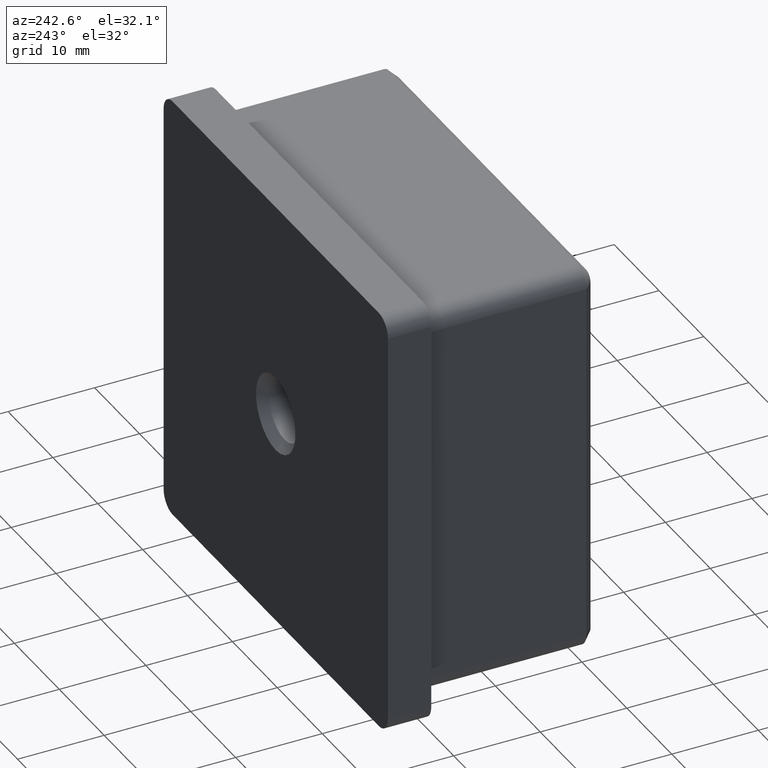
[diagram: clean part render]
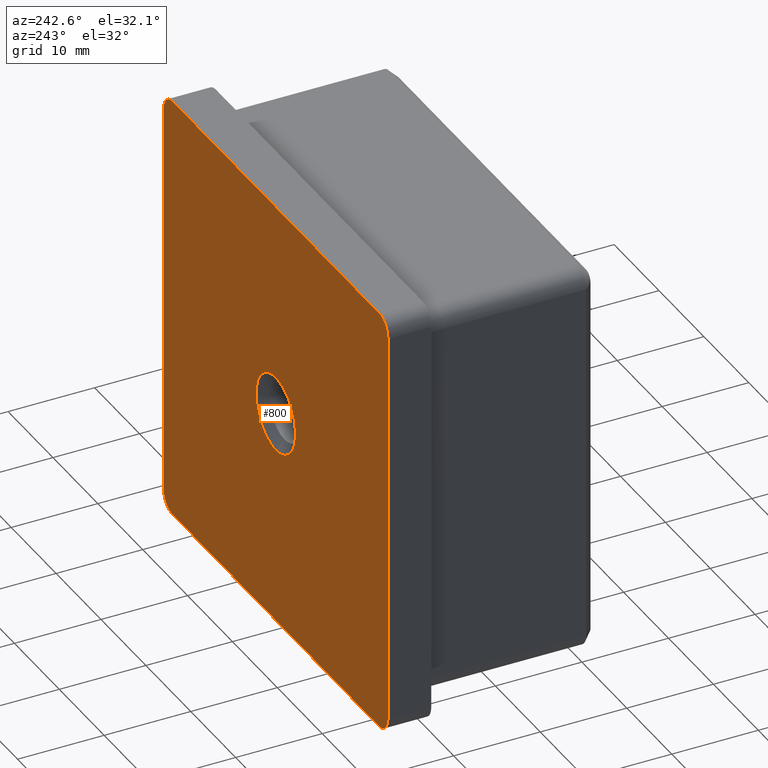
[diagram: same view with one face highlighted and labeled with its STEP entity id]
A machine part, auxiliary view. The second image highlights one B-rep face of the part: STEP entity #800.
In plain terms, the highlighted planar face has unit normal (0, 1, 0).
Its self-contained STEP definition (entity closure, byte-faithful):
#255 = DIRECTION ( 'NONE',  ( 0.0000000000000000000, 1.000000000000000000, 0.0000000000000000000 ) ) ;
#508 = EDGE_LOOP ( 'NONE', ( #3641, #13262, #15725, #5010, #15180, #10152, #16857, #9380 ) ) ;
#524 = LINE ( 'NONE', #5050, #7430 ) ;
#800 = ADVANCED_FACE ( 'NONE', ( #1093, #11673 ), #3887, .T. ) ;
#891 = VERTEX_POINT ( 'NONE', #16561 ) ;
#1093 = FACE_BOUND ( 'NONE', #3625, .T. ) ;
#1098 = EDGE_CURVE ( 'NONE', #13890, #2833, #2174, .T. ) ;
#1150 = DIRECTION ( 'NONE',  ( -0.0000000000000000000, -1.000000000000000000, -0.0000000000000000000 ) ) ;
#1577 = DIRECTION ( 'NONE',  ( 0.0000000000000000000, 1.000000000000000000, 0.0000000000000000000 ) ) ;
#1687 = VERTEX_POINT ( 'NONE', #16149 ) ;
#1812 = EDGE_CURVE ( 'NONE', #3569, #1687, #5575, .T. ) ;
#2174 = CIRCLE ( 'NONE', #5744, 2.000000000000001800 ) ;
#2728 = CARTESIAN_POINT ( 'NONE',  ( 7.837739514543038200E-016, 5.000000000000000000, -4.399999999999979000 ) ) ;
#2833 = VERTEX_POINT ( 'NONE', #6756 ) ;
#2918 = CARTESIAN_POINT ( 'NONE',  ( -23.00000000000000700, 5.000000000000000000, -23.00000000000000000 ) ) ;
#2933 = DIRECTION ( 'NONE',  ( 0.0000000000000000000, 1.000000000000000000, 0.0000000000000000000 ) ) ;
#3545 = DIRECTION ( 'NONE',  ( -0.0000000000000000000, -0.0000000000000000000, -1.000000000000000000 ) ) ;
#3569 = VERTEX_POINT ( 'NONE', #4045 ) ;
#3625 = EDGE_LOOP ( 'NONE', ( #16063, #9490 ) ) ;
#3641 = ORIENTED_EDGE ( 'NONE', *, *, #12205, .T. ) ;
#3667 = DIRECTION ( 'NONE',  ( 0.0000000000000000000, 0.0000000000000000000, 1.000000000000000000 ) ) ;
#3756 = VECTOR ( 'NONE', #3545, 1000.000000000000000 ) ;
#3887 = PLANE ( 'NONE',  #16170 ) ;
#4045 = CARTESIAN_POINT ( 'NONE',  ( -24.99999999999998900, 5.000000000000000000, 22.99999999999998600 ) ) ;
#4773 = EDGE_CURVE ( 'NONE', #5229, #5257, #11298, .T. ) ;
#4786 = EDGE_CURVE ( 'NONE', #1687, #13890, #12388, .T. ) ;
#5010 = ORIENTED_EDGE ( 'NONE', *, *, #12837, .T. ) ;
#5050 = CARTESIAN_POINT ( 'NONE',  ( -25.00000000000000400, 5.000000000000000000, -25.00000000000000000 ) ) ;
#5229 = VERTEX_POINT ( 'NONE', #8347 ) ;
#5257 = VERTEX_POINT ( 'NONE', #2728 ) ;
#5523 = AXIS2_PLACEMENT_3D ( 'NONE', #14088, #2933, #5740 ) ;
#5575 = CIRCLE ( 'NONE', #5523, 2.000000000000001800 ) ;
#5660 = DIRECTION ( 'NONE',  ( 0.0000000000000000000, 0.0000000000000000000, 1.000000000000000000 ) ) ;
#5740 = DIRECTION ( 'NONE',  ( 0.0000000000000000000, 0.0000000000000000000, 1.000000000000000000 ) ) ;
#5744 = AXIS2_PLACEMENT_3D ( 'NONE', #15512, #1577, #11413 ) ;
#6152 = DIRECTION ( 'NONE',  ( 0.0000000000000000000, 0.0000000000000000000, 1.000000000000000000 ) ) ;
#6570 = CIRCLE ( 'NONE', #9542, 4.399999999999979000 ) ;
#6688 = VECTOR ( 'NONE', #13915, 1000.000000000000000 ) ;
#6756 = CARTESIAN_POINT ( 'NONE',  ( 24.99999999999999600, 5.000000000000000000, 22.99999999999998600 ) ) ;
#7252 = CARTESIAN_POINT ( 'NONE',  ( -23.00000000000000700, 5.000000000000000000, -25.00000000000000000 ) ) ;
#7358 = CIRCLE ( 'NONE', #12325, 2.000000000000001800 ) ;
#7430 = VECTOR ( 'NONE', #14659, 1000.000000000000000 ) ;
#7559 = VERTEX_POINT ( 'NONE', #7755 ) ;
#7755 = CARTESIAN_POINT ( 'NONE',  ( -25.00000000000000400, 5.000000000000000000, -23.00000000000000000 ) ) ;
#7767 = CARTESIAN_POINT ( 'NONE',  ( 24.99999999999999600, 5.000000000000000000, -25.00000000000000000 ) ) ;
#7880 = LINE ( 'NONE', #7767, #3756 ) ;
#7883 = EDGE_CURVE ( 'NONE', #7559, #3569, #524, .T. ) ;
#7977 = CARTESIAN_POINT ( 'NONE',  ( 22.99999999999999600, 5.000000000000000000, 24.99999999999998600 ) ) ;
#8031 = DIRECTION ( 'NONE',  ( 0.0000000000000000000, 0.0000000000000000000, 1.000000000000000000 ) ) ;
#8209 = DIRECTION ( 'NONE',  ( 1.000000000000000000, 0.0000000000000000000, 0.0000000000000000000 ) ) ;
#8347 = CARTESIAN_POINT ( 'NONE',  ( 2.449293598294707400E-016, 5.000000000000000000, 4.399999999999979000 ) ) ;
#9380 = ORIENTED_EDGE ( 'NONE', *, *, #1098, .T. ) ;
#9471 = DIRECTION ( 'NONE',  ( 0.0000000000000000000, 1.000000000000000000, 0.0000000000000000000 ) ) ;
#9490 = ORIENTED_EDGE ( 'NONE', *, *, #9577, .T. ) ;
#9542 = AXIS2_PLACEMENT_3D ( 'NONE', #11779, #12924, #6152 ) ;
#9577 = EDGE_CURVE ( 'NONE', #5257, #5229, #6570, .T. ) ;
#10152 = ORIENTED_EDGE ( 'NONE', *, *, #1812, .T. ) ;
#11155 = CIRCLE ( 'NONE', #14962, 2.000000000000001800 ) ;
#11298 = CIRCLE ( 'NONE', #12854, 4.399999999999979000 ) ;
#11413 = DIRECTION ( 'NONE',  ( 0.0000000000000000000, 0.0000000000000000000, 1.000000000000000000 ) ) ;
#11673 = FACE_OUTER_BOUND ( 'NONE', #508, .T. ) ;
#11779 = CARTESIAN_POINT ( 'NONE',  ( 2.449293598294707400E-016, 5.000000000000000000, 0.0000000000000000000 ) ) ;
#11826 = CARTESIAN_POINT ( 'NONE',  ( 22.99999999999999600, 5.000000000000000000, -23.00000000000000000 ) ) ;
#12205 = EDGE_CURVE ( 'NONE', #2833, #891, #7880, .T. ) ;
#12278 = CARTESIAN_POINT ( 'NONE',  ( 22.99999999999999600, 5.000000000000000000, -25.00000000000000000 ) ) ;
#12325 = AXIS2_PLACEMENT_3D ( 'NONE', #11826, #16045, #3667 ) ;
#12370 = VERTEX_POINT ( 'NONE', #12278 ) ;
#12388 = LINE ( 'NONE', #13711, #16255 ) ;
#12529 = CARTESIAN_POINT ( 'NONE',  ( -25.00000000000000400, 5.000000000000000000, -25.00000000000000000 ) ) ;
#12837 = EDGE_CURVE ( 'NONE', #14067, #7559, #11155, .T. ) ;
#12854 = AXIS2_PLACEMENT_3D ( 'NONE', #17843, #1150, #8031 ) ;
#12924 = DIRECTION ( 'NONE',  ( -0.0000000000000000000, -1.000000000000000000, -0.0000000000000000000 ) ) ;
#13262 = ORIENTED_EDGE ( 'NONE', *, *, #16417, .T. ) ;
#13711 = CARTESIAN_POINT ( 'NONE',  ( -24.99999999999998900, 5.000000000000000000, 24.99999999999998600 ) ) ;
#13890 = VERTEX_POINT ( 'NONE', #7977 ) ;
#13915 = DIRECTION ( 'NONE',  ( -1.000000000000000000, -0.0000000000000000000, -0.0000000000000000000 ) ) ;
#14067 = VERTEX_POINT ( 'NONE', #7252 ) ;
#14088 = CARTESIAN_POINT ( 'NONE',  ( -22.99999999999999300, 5.000000000000000000, 22.99999999999998600 ) ) ;
#14659 = DIRECTION ( 'NONE',  ( 2.775557561562891800E-016, 0.0000000000000000000, 1.000000000000000000 ) ) ;
#14867 = EDGE_CURVE ( 'NONE', #12370, #14067, #17069, .T. ) ;
#14962 = AXIS2_PLACEMENT_3D ( 'NONE', #2918, #255, #5660 ) ;
#15180 = ORIENTED_EDGE ( 'NONE', *, *, #7883, .T. ) ;
#15512 = CARTESIAN_POINT ( 'NONE',  ( 23.00000000000000000, 5.000000000000000000, 22.99999999999998600 ) ) ;
#15725 = ORIENTED_EDGE ( 'NONE', *, *, #14867, .T. ) ;
#16045 = DIRECTION ( 'NONE',  ( 0.0000000000000000000, 1.000000000000000000, 0.0000000000000000000 ) ) ;
#16063 = ORIENTED_EDGE ( 'NONE', *, *, #4773, .T. ) ;
#16149 = CARTESIAN_POINT ( 'NONE',  ( -22.99999999999999300, 5.000000000000000000, 24.99999999999998600 ) ) ;
#16170 = AXIS2_PLACEMENT_3D ( 'NONE', #17874, #9471, #16437 ) ;
#16255 = VECTOR ( 'NONE', #8209, 1000.000000000000000 ) ;
#16417 = EDGE_CURVE ( 'NONE', #891, #12370, #7358, .T. ) ;
#16437 = DIRECTION ( 'NONE',  ( 0.0000000000000000000, -0.0000000000000000000, 1.000000000000000000 ) ) ;
#16561 = CARTESIAN_POINT ( 'NONE',  ( 24.99999999999999600, 5.000000000000000000, -23.00000000000000000 ) ) ;
#16857 = ORIENTED_EDGE ( 'NONE', *, *, #4786, .T. ) ;
#17069 = LINE ( 'NONE', #12529, #6688 ) ;
#17843 = CARTESIAN_POINT ( 'NONE',  ( 2.449293598294707400E-016, 5.000000000000000000, 0.0000000000000000000 ) ) ;
#17874 = CARTESIAN_POINT ( 'NONE',  ( 0.0000000000000000000, 5.000000000000000000, 0.0000000000000000000 ) ) ;